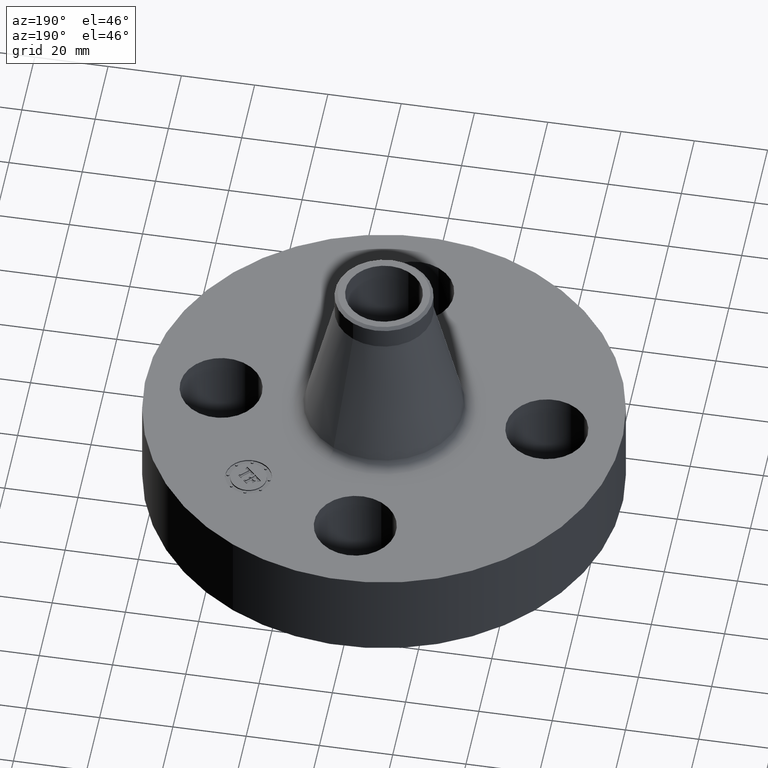
[diagram: clean part render]
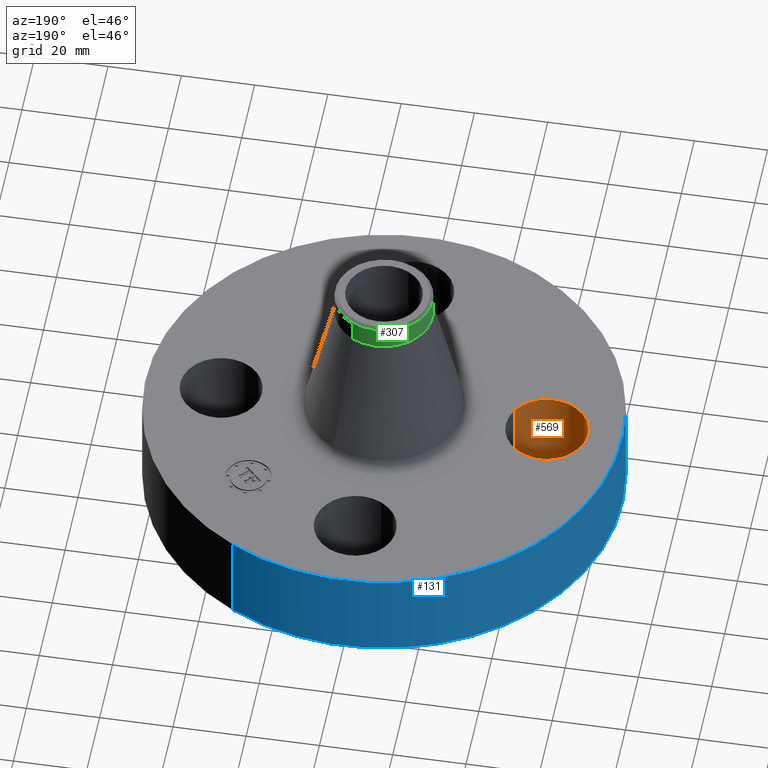
[diagram: same view with three faces highlighted in distinct colors, each labeled with its STEP entity id]
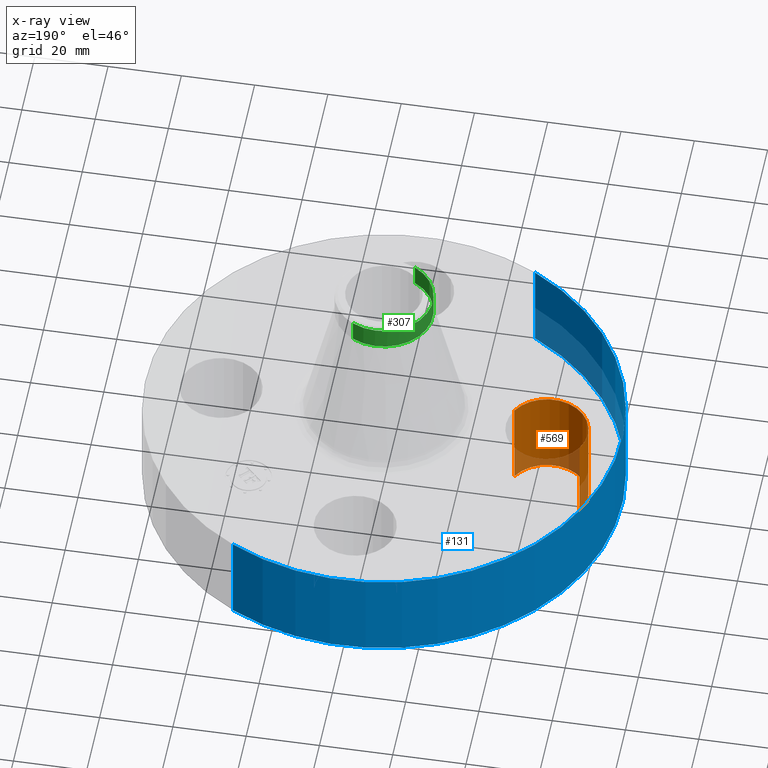
[diagram: x-ray of the same camera — body ghosted, the three highlighted faces saturated]
A machine part, auxiliary view with three faces highlighted in distinct colors.
The next image is the same camera in x-ray (body ghosted, the three faces saturated) — at least one of them is partly hidden behind the body in this view.
Their STEP definitions:

[orange] entity #569 — the highlighted cylindrical surface (partial cylindrical patch) has radius 11.176 mm, axis along (-0, 0, -1).
#461=AXIS2_PLACEMENT_3D('Circle Axis2P3D',#459,#460,$) ;
#542=AXIS2_PLACEMENT_3D('Cylinder Axis2P3D',#539,#540,#541) ;
#560=AXIS2_PLACEMENT_3D('Circle Axis2P3D',#558,#559,$) ;
#459=CARTESIAN_POINT('Axis2P3D Location',(-1.75000000001,-2.79741234551E-016,0.)) ;
#463=CARTESIAN_POINT('Vertex',(-1.36386367277,-0.210947236987,0.)) ;
#465=CARTESIAN_POINT('Vertex',(-2.13613632724,0.210947236987,-1.39870617276E-016)) ;
#539=CARTESIAN_POINT('Axis2P3D Location',(-1.75000000001,-2.14313189852E-016,0.99606299213)) ;
#544=CARTESIAN_POINT('Line Origine',(-1.36386367277,-0.210947236987,0.500000000002)) ;
#548=CARTESIAN_POINT('Vertex',(-1.36386367277,-0.210947236987,1.)) ;
#551=CARTESIAN_POINT('Line Origine',(-2.13613632724,0.210947236987,0.500000000002)) ;
#555=CARTESIAN_POINT('Vertex',(-2.13613632724,0.210947236987,1.)) ;
#558=CARTESIAN_POINT('Axis2P3D Location',(-1.75000000001,-2.14313189852E-016,1.)) ;
#460=DIRECTION('Axis2P3D Direction',(0.,0.,-0.0393700787402)) ;
#540=DIRECTION('Axis2P3D Direction',(-0.,0.,-0.0393700787402)) ;
#541=DIRECTION('Axis2P3D XDirection',(-0.0345504945626,0.0188750212049,0.)) ;
#545=DIRECTION('Vector Direction',(0.,0.,-0.0393700787402)) ;
#552=DIRECTION('Vector Direction',(0.,0.,-0.0393700787402)) ;
#559=DIRECTION('Axis2P3D Direction',(-0.,0.,-0.0393700787402)) ;
#546=VECTOR('Line Direction',#545,0.0393700787402) ;
#553=VECTOR('Line Direction',#552,0.0393700787402) ;
#564=ORIENTED_EDGE('',*,*,#550,.F.) ;
#565=ORIENTED_EDGE('',*,*,#467,.T.) ;
#566=ORIENTED_EDGE('',*,*,#557,.T.) ;
#567=ORIENTED_EDGE('',*,*,#562,.F.) ;
#569=ADVANCED_FACE('PartBody',(#568),#543,.F.) ;
#462=CIRCLE('generated circle',#461,0.440000000002) ;
#561=CIRCLE('generated circle',#560,0.440000000002) ;
#543=CYLINDRICAL_SURFACE('generated cylinder',#542,0.440000000002) ;
#467=EDGE_CURVE('',#464,#466,#462,.T.) ;
#550=EDGE_CURVE('',#464,#549,#547,.F.) ;
#557=EDGE_CURVE('',#466,#556,#554,.F.) ;
#562=EDGE_CURVE('',#549,#556,#561,.T.) ;
#563=EDGE_LOOP('',(#564,#565,#566,#567)) ;
#568=FACE_OUTER_BOUND('',#563,.T.) ;
#547=LINE('Line',#544,#546) ;
#554=LINE('Line',#551,#553) ;
#464=VERTEX_POINT('',#463) ;
#466=VERTEX_POINT('',#465) ;
#549=VERTEX_POINT('',#548) ;
#556=VERTEX_POINT('',#555) ;

[blue] entity #131 — the highlighted cylindrical surface (partial cylindrical patch) has radius 65.024 mm, axis along (0, 0, -1).
#95=AXIS2_PLACEMENT_3D('Cylinder Axis2P3D',#92,#93,#94) ;
#99=AXIS2_PLACEMENT_3D('Circle Axis2P3D',#97,#98,$) ;
#115=AXIS2_PLACEMENT_3D('Circle Axis2P3D',#113,#114,$) ;
#92=CARTESIAN_POINT('Axis2P3D Location',(0.,0.,1.37500000001)) ;
#97=CARTESIAN_POINT('Axis2P3D Location',(0.,0.,5.59482469102E-016)) ;
#101=CARTESIAN_POINT('Vertex',(-1.22732937883,-2.24661135845,5.59482469102E-016)) ;
#103=CARTESIAN_POINT('Vertex',(1.22732937883,2.24661135845,5.59482469102E-016)) ;
#106=CARTESIAN_POINT('Line Origine',(-1.22732937883,-2.24661135845,0.500000000002)) ;
#110=CARTESIAN_POINT('Vertex',(-1.22732937883,-2.24661135845,1.)) ;
#113=CARTESIAN_POINT('Axis2P3D Location',(0.,0.,1.)) ;
#117=CARTESIAN_POINT('Vertex',(1.22732937883,2.24661135845,1.)) ;
#120=CARTESIAN_POINT('Line Origine',(1.22732937883,2.24661135845,0.500000000002)) ;
#93=DIRECTION('Axis2P3D Direction',(0.,0.,-0.0393700787402)) ;
#94=DIRECTION('Axis2P3D XDirection',(0.0188750212049,0.0345504945626,0.)) ;
#98=DIRECTION('Axis2P3D Direction',(0.,0.,-0.0393700787402)) ;
#107=DIRECTION('Vector Direction',(0.,0.,-0.0393700787402)) ;
#114=DIRECTION('Axis2P3D Direction',(0.,0.,-0.0393700787402)) ;
#121=DIRECTION('Vector Direction',(0.,0.,-0.0393700787402)) ;
#108=VECTOR('Line Direction',#107,0.0393700787402) ;
#122=VECTOR('Line Direction',#121,0.0393700787402) ;
#126=ORIENTED_EDGE('',*,*,#105,.F.) ;
#127=ORIENTED_EDGE('',*,*,#112,.T.) ;
#128=ORIENTED_EDGE('',*,*,#119,.T.) ;
#129=ORIENTED_EDGE('',*,*,#124,.F.) ;
#131=ADVANCED_FACE('PartBody',(#130),#96,.T.) ;
#100=CIRCLE('generated circle',#99,2.56000000001) ;
#116=CIRCLE('generated circle',#115,2.56000000001) ;
#96=CYLINDRICAL_SURFACE('generated cylinder',#95,2.56000000001) ;
#105=EDGE_CURVE('',#102,#104,#100,.T.) ;
#112=EDGE_CURVE('',#102,#111,#109,.F.) ;
#119=EDGE_CURVE('',#111,#118,#116,.T.) ;
#124=EDGE_CURVE('',#104,#118,#123,.F.) ;
#125=EDGE_LOOP('',(#126,#127,#128,#129)) ;
#130=FACE_OUTER_BOUND('',#125,.T.) ;
#109=LINE('Line',#106,#108) ;
#123=LINE('Line',#120,#122) ;
#102=VERTEX_POINT('',#101) ;
#104=VERTEX_POINT('',#103) ;
#111=VERTEX_POINT('',#110) ;
#118=VERTEX_POINT('',#117) ;

[green] entity #307 — the highlighted cylindrical surface (partial cylindrical patch) has radius 13.335 mm, axis along (0, 0, -1).
#239=AXIS2_PLACEMENT_3D('Circle Axis2P3D',#237,#238,$) ;
#252=AXIS2_PLACEMENT_3D('Cylinder Axis2P3D',#249,#250,#251) ;
#290=AXIS2_PLACEMENT_3D('Circle Axis2P3D',#288,#289,$) ;
#297=AXIS2_PLACEMENT_3D('Circle Axis2P3D',#295,#296,$) ;
#215=CARTESIAN_POINT('Vertex',(0.251698407768,0.460730844994,2.4874910258)) ;
#222=CARTESIAN_POINT('Vertex',(-0.251698407768,-0.460730844994,2.4874910258)) ;
#237=CARTESIAN_POINT('Axis2P3D Location',(0.,0.,2.4874910258)) ;
#249=CARTESIAN_POINT('Axis2P3D Location',(0.,0.,1.37500000001)) ;
#254=CARTESIAN_POINT('Line Origine',(-0.251698407768,-0.460730844994,2.60560126202)) ;
#258=CARTESIAN_POINT('Vertex',(-0.251698407768,-0.460730844994,2.72371149824)) ;
#261=CARTESIAN_POINT('Line Origine',(0.251698407768,0.460730844994,2.60560126202)) ;
#265=CARTESIAN_POINT('Vertex',(0.251698407768,0.460730844994,2.72371149824)) ;
#288=CARTESIAN_POINT('Axis2P3D Location',(0.,0.,2.72371149824)) ;
#292=CARTESIAN_POINT('Vertex',(-0.251698407768,0.460730844994,2.72371149824)) ;
#295=CARTESIAN_POINT('Axis2P3D Location',(0.,0.,2.72371149824)) ;
#238=DIRECTION('Axis2P3D Direction',(0.,0.,-0.0393700787402)) ;
#250=DIRECTION('Axis2P3D Direction',(0.,0.,-0.0393700787402)) ;
#251=DIRECTION('Axis2P3D XDirection',(-0.0188750212049,-0.0345504945626,0.)) ;
#255=DIRECTION('Vector Direction',(0.,0.,-0.0393700787402)) ;
#262=DIRECTION('Vector Direction',(0.,0.,-0.0393700787402)) ;
#289=DIRECTION('Axis2P3D Direction',(0.,0.,-0.0393700787402)) ;
#296=DIRECTION('Axis2P3D Direction',(0.,0.,-0.0393700787402)) ;
#256=VECTOR('Line Direction',#255,0.0393700787402) ;
#263=VECTOR('Line Direction',#262,0.0393700787402) ;
#301=ORIENTED_EDGE('',*,*,#267,.F.) ;
#302=ORIENTED_EDGE('',*,*,#241,.F.) ;
#303=ORIENTED_EDGE('',*,*,#260,.T.) ;
#304=ORIENTED_EDGE('',*,*,#294,.F.) ;
#305=ORIENTED_EDGE('',*,*,#299,.T.) ;
#307=ADVANCED_FACE('PartBody',(#306),#253,.T.) ;
#240=CIRCLE('generated circle',#239,0.525000000002) ;
#291=CIRCLE('generated circle',#290,0.525000000002) ;
#298=CIRCLE('generated circle',#297,0.525000000002) ;
#253=CYLINDRICAL_SURFACE('generated cylinder',#252,0.525000000002) ;
#241=EDGE_CURVE('',#223,#216,#240,.T.) ;
#260=EDGE_CURVE('',#223,#259,#257,.F.) ;
#267=EDGE_CURVE('',#216,#266,#264,.F.) ;
#294=EDGE_CURVE('',#293,#259,#291,.F.) ;
#299=EDGE_CURVE('',#293,#266,#298,.T.) ;
#300=EDGE_LOOP('',(#301,#302,#303,#304,#305)) ;
#306=FACE_OUTER_BOUND('',#300,.T.) ;
#257=LINE('Line',#254,#256) ;
#264=LINE('Line',#261,#263) ;
#216=VERTEX_POINT('',#215) ;
#223=VERTEX_POINT('',#222) ;
#259=VERTEX_POINT('',#258) ;
#266=VERTEX_POINT('',#265) ;
#293=VERTEX_POINT('',#292) ;